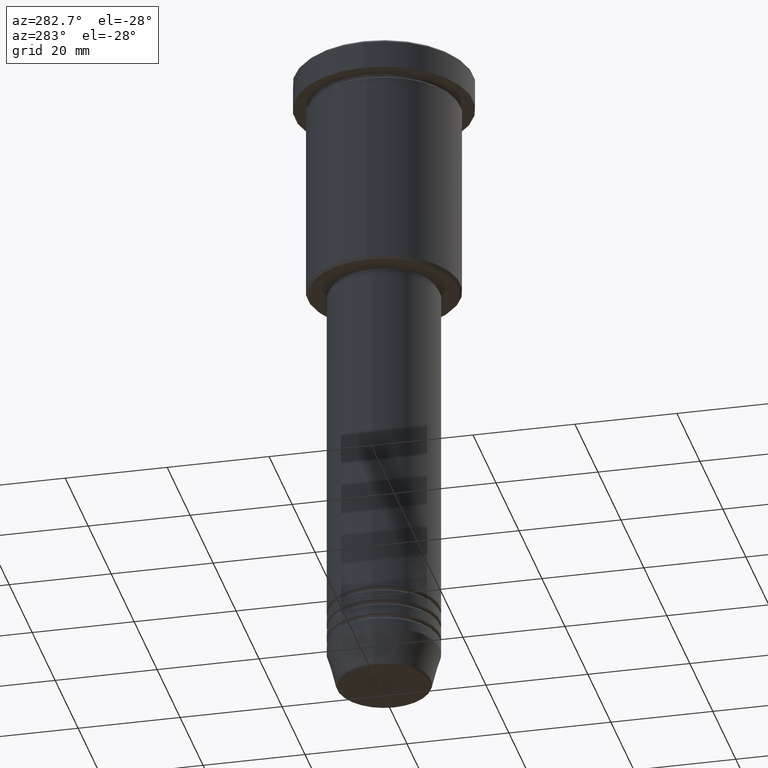
[diagram: clean part render]
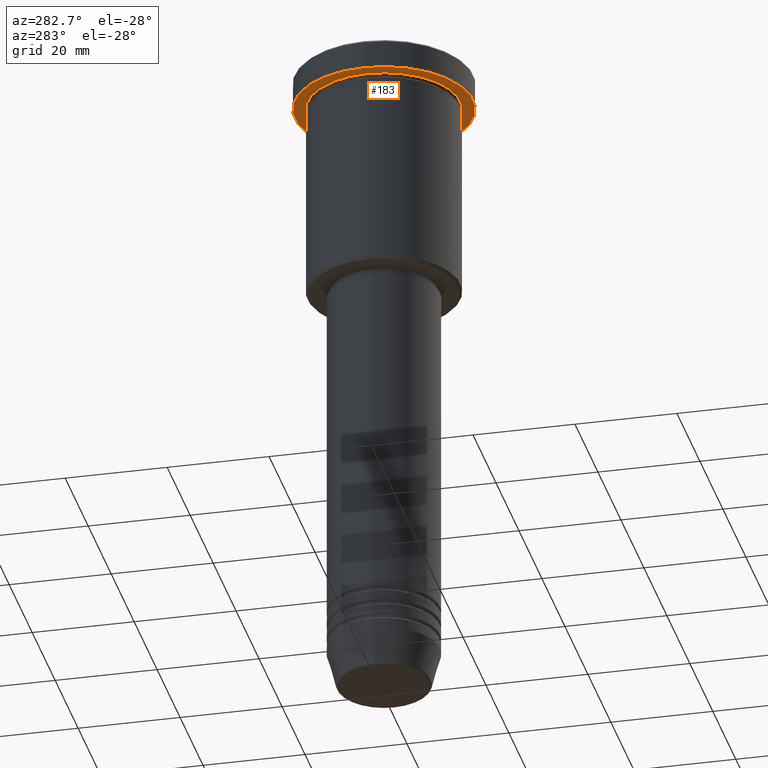
[diagram: same view with one face highlighted and labeled with its STEP entity id]
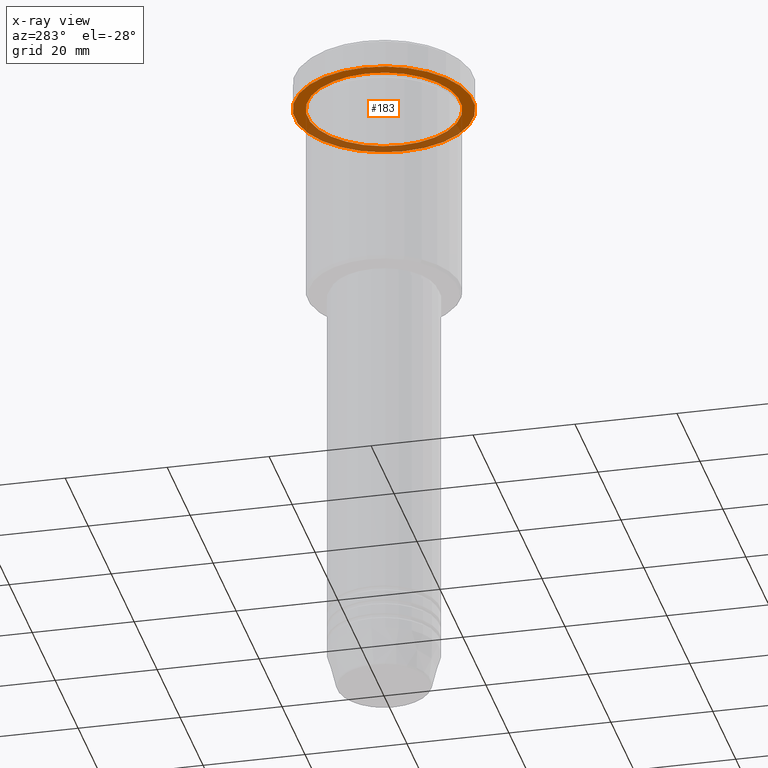
[diagram: x-ray of the same camera — body ghosted, the highlighted face saturated]
A machine part, auxiliary view. The second image highlights one B-rep face of the part: STEP entity #183.
The next image is the same camera in x-ray: the body ghosted, the highlighted face saturated — about 34% of this face is hidden behind the body in this view.
In plain terms, the highlighted planar face has unit normal (0, 0, -1).
Its self-contained STEP definition (entity closure, byte-faithful):
#10 = FACE_BOUND ( 'NONE', #393, .T. ) ;
#36 = CARTESIAN_POINT ( 'NONE',  ( 17.50000000000000000, 0.000000000000000000, -5.999999999999995559 ) ) ;
#38 = AXIS2_PLACEMENT_3D ( 'NONE', #879, #440, #1051 ) ;
#57 = VERTEX_POINT ( 'NONE', #36 ) ;
#58 = DIRECTION ( 'NONE',  ( -0.000000000000000000, -0.000000000000000000, 1.000000000000000000 ) ) ;
#119 = EDGE_CURVE ( 'NONE', #233, #727, #1098, .T. ) ;
#136 = ORIENTED_EDGE ( 'NONE', *, *, #315, .F. ) ;
#178 = DIRECTION ( 'NONE',  ( -0.000000000000000000, -0.000000000000000000, 1.000000000000000000 ) ) ;
#183 = ADVANCED_FACE ( 'NONE', ( #10, #381 ), #308, .T. ) ;
#199 = EDGE_CURVE ( 'NONE', #57, #324, #606, .T. ) ;
#233 = VERTEX_POINT ( 'NONE', #559 ) ;
#263 = ORIENTED_EDGE ( 'NONE', *, *, #119, .T. ) ;
#265 = CIRCLE ( 'NONE', #942, 15.00000000000000000 ) ;
#271 = DIRECTION ( 'NONE',  ( -1.000000000000000000, 0.000000000000000000, 0.000000000000000000 ) ) ;
#276 = CARTESIAN_POINT ( 'NONE',  ( -17.50000000000000000, 2.143131898507868248E-15, -5.999999999999995559 ) ) ;
#308 = PLANE ( 'NONE',  #38 ) ;
#311 = CARTESIAN_POINT ( 'NONE',  ( -15.00000000000000000, 0.000000000000000000, -5.999999999999994671 ) ) ;
#315 = EDGE_CURVE ( 'NONE', #324, #57, #1163, .T. ) ;
#324 = VERTEX_POINT ( 'NONE', #276 ) ;
#336 = EDGE_CURVE ( 'NONE', #727, #233, #265, .T. ) ;
#341 = CARTESIAN_POINT ( 'NONE',  ( 0.000000000000000000, 0.000000000000000000, -5.999999999999995559 ) ) ;
#345 = DIRECTION ( 'NONE',  ( 1.000000000000000000, 0.000000000000000000, 0.000000000000000000 ) ) ;
#381 = FACE_OUTER_BOUND ( 'NONE', #575, .T. ) ;
#385 = AXIS2_PLACEMENT_3D ( 'NONE', #341, #178, #345 ) ;
#393 = EDGE_LOOP ( 'NONE', ( #887, #263 ) ) ;
#426 = DIRECTION ( 'NONE',  ( 1.000000000000000000, 0.000000000000000000, 0.000000000000000000 ) ) ;
#440 = DIRECTION ( 'NONE',  ( 0.000000000000000000, 0.000000000000000000, -1.000000000000000000 ) ) ;
#517 = CARTESIAN_POINT ( 'NONE',  ( 0.000000000000000000, 0.000000000000000000, -5.999999999999995559 ) ) ;
#540 = CARTESIAN_POINT ( 'NONE',  ( 0.000000000000000000, 0.000000000000000000, -5.999999999999995559 ) ) ;
#550 = CARTESIAN_POINT ( 'NONE',  ( 0.000000000000000000, 0.000000000000000000, -5.999999999999995559 ) ) ;
#559 = CARTESIAN_POINT ( 'NONE',  ( 15.00000000000000000, 1.836970198721029589E-15, -5.999999999999994671 ) ) ;
#575 = EDGE_LOOP ( 'NONE', ( #647, #136 ) ) ;
#606 = CIRCLE ( 'NONE', #1141, 17.50000000000000000 ) ;
#647 = ORIENTED_EDGE ( 'NONE', *, *, #199, .F. ) ;
#727 = VERTEX_POINT ( 'NONE', #311 ) ;
#879 = CARTESIAN_POINT ( 'NONE',  ( 0.000000000000000000, 17.50000000000000000, -5.999999999999995559 ) ) ;
#887 = ORIENTED_EDGE ( 'NONE', *, *, #336, .T. ) ;
#905 = DIRECTION ( 'NONE',  ( -0.000000000000000000, -0.000000000000000000, 1.000000000000000000 ) ) ;
#942 = AXIS2_PLACEMENT_3D ( 'NONE', #550, #1159, #271 ) ;
#1051 = DIRECTION ( 'NONE',  ( -1.000000000000000000, 0.000000000000000000, -0.000000000000000000 ) ) ;
#1098 = CIRCLE ( 'NONE', #1120, 15.00000000000000000 ) ;
#1120 = AXIS2_PLACEMENT_3D ( 'NONE', #540, #905, #1174 ) ;
#1141 = AXIS2_PLACEMENT_3D ( 'NONE', #517, #58, #426 ) ;
#1159 = DIRECTION ( 'NONE',  ( -0.000000000000000000, -0.000000000000000000, 1.000000000000000000 ) ) ;
#1163 = CIRCLE ( 'NONE', #385, 17.50000000000000000 ) ;
#1174 = DIRECTION ( 'NONE',  ( -1.000000000000000000, 0.000000000000000000, 0.000000000000000000 ) ) ;